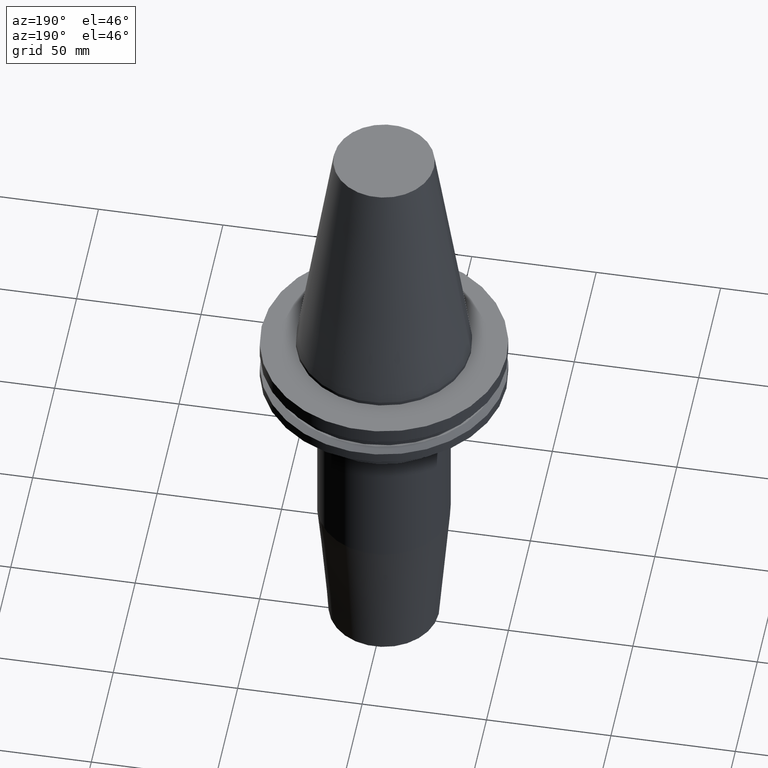
[diagram: clean part render]
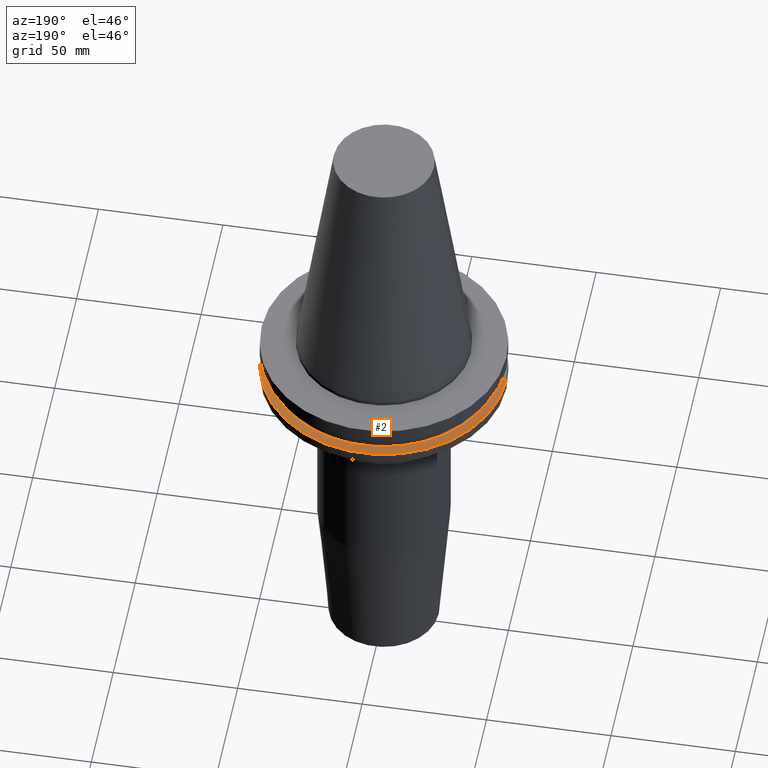
[diagram: same view with one face highlighted and labeled with its STEP entity id]
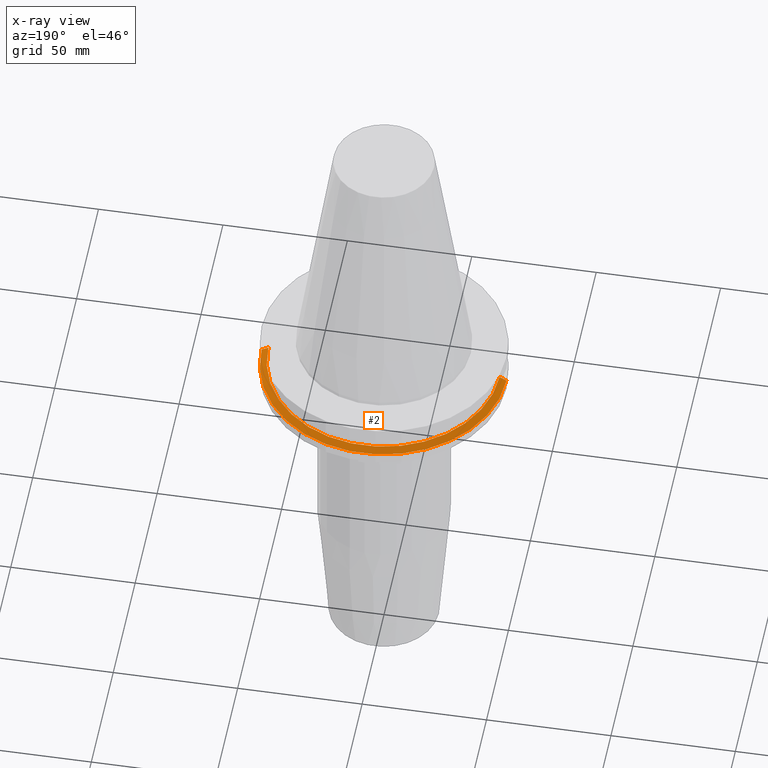
[diagram: x-ray of the same camera — body ghosted, the highlighted face saturated]
A machine part, auxiliary view. The second image highlights one B-rep face of the part: STEP entity #2.
The next image is the same camera in x-ray: the body ghosted, the highlighted face saturated — about 0% of this face is hidden behind the body in this view.
In plain terms, the highlighted conical surface has half-angle 60 deg.
Its self-contained STEP definition (entity closure, byte-faithful):
#1 = CARTESIAN_POINT ( 'NONE',  ( 0.000000000000000000, 0.000000000000000000, -14.65761014474876944 ) ) ;
#2 = ADVANCED_FACE ( 'NONE', ( #357 ), #383, .T. ) ;
#58 = DIRECTION ( 'NONE',  ( 0.8660254037844169472, 1.060575238724880168E-16, -0.5000000000000375255 ) ) ;
#66 = CARTESIAN_POINT ( 'NONE',  ( -49.21499999999998920, 0.000000000000000000, -14.65761014474876944 ) ) ;
#130 = ORIENTED_EDGE ( 'NONE', *, *, #622, .T. ) ;
#147 = ORIENTED_EDGE ( 'NONE', *, *, #510, .T. ) ;
#155 = LINE ( 'NONE', #66, #541 ) ;
#162 = AXIS2_PLACEMENT_3D ( 'NONE', #1, #466, #349 ) ;
#170 = DIRECTION ( 'NONE',  ( -0.000000000000000000, -0.000000000000000000, 1.000000000000000000 ) ) ;
#187 = CARTESIAN_POINT ( 'NONE',  ( 46.43919780457007818, 5.857130358318725715E-15, -13.05499999999999794 ) ) ;
#238 = DIRECTION ( 'NONE',  ( 1.000000000000000000, 0.000000000000000000, 0.000000000000000000 ) ) ;
#241 = EDGE_CURVE ( 'NONE', #728, #271, #435, .T. ) ;
#271 = VERTEX_POINT ( 'NONE', #577 ) ;
#303 = CARTESIAN_POINT ( 'NONE',  ( 0.000000000000000000, 0.000000000000000000, -13.05499999999999794 ) ) ;
#323 = AXIS2_PLACEMENT_3D ( 'NONE', #768, #438, #238 ) ;
#329 = CARTESIAN_POINT ( 'NONE',  ( 49.21499999999998920, 6.027099222003697037E-15, -14.65761014474876944 ) ) ;
#334 = DIRECTION ( 'NONE',  ( 1.000000000000000000, 0.000000000000000000, 0.000000000000000000 ) ) ;
#349 = DIRECTION ( 'NONE',  ( -1.000000000000000000, 0.000000000000000000, 0.000000000000000000 ) ) ;
#357 = FACE_OUTER_BOUND ( 'NONE', #587, .T. ) ;
#373 = CARTESIAN_POINT ( 'NONE',  ( -49.21499999999998920, 6.027099222003697037E-15, -14.65761014474876944 ) ) ;
#383 = CONICAL_SURFACE ( 'NONE', #162, 49.21499999999998920, 1.047197551196554333 ) ;
#387 = LINE ( 'NONE', #329, #763 ) ;
#395 = EDGE_CURVE ( 'NONE', #271, #456, #155, .T. ) ;
#413 = DIRECTION ( 'NONE',  ( -0.8660254037844169472, 0.000000000000000000, -0.5000000000000375255 ) ) ;
#435 = CIRCLE ( 'NONE', #473, 46.43919780457007818 ) ;
#438 = DIRECTION ( 'NONE',  ( -0.000000000000000000, -0.000000000000000000, 1.000000000000000000 ) ) ;
#456 = VERTEX_POINT ( 'NONE', #373 ) ;
#466 = DIRECTION ( 'NONE',  ( 0.000000000000000000, 0.000000000000000000, -1.000000000000000000 ) ) ;
#473 = AXIS2_PLACEMENT_3D ( 'NONE', #303, #170, #334 ) ;
#507 = VERTEX_POINT ( 'NONE', #820 ) ;
#510 = EDGE_CURVE ( 'NONE', #507, #456, #568, .T. ) ;
#541 = VECTOR ( 'NONE', #413, 1000.000000000000114 ) ;
#568 = CIRCLE ( 'NONE', #323, 49.21499999999998920 ) ;
#577 = CARTESIAN_POINT ( 'NONE',  ( -46.43919780457007818, 0.000000000000000000, -13.05499999999999794 ) ) ;
#587 = EDGE_LOOP ( 'NONE', ( #659, #130, #147, #596 ) ) ;
#596 = ORIENTED_EDGE ( 'NONE', *, *, #395, .F. ) ;
#622 = EDGE_CURVE ( 'NONE', #728, #507, #387, .T. ) ;
#659 = ORIENTED_EDGE ( 'NONE', *, *, #241, .F. ) ;
#728 = VERTEX_POINT ( 'NONE', #187 ) ;
#763 = VECTOR ( 'NONE', #58, 1000.000000000000114 ) ;
#768 = CARTESIAN_POINT ( 'NONE',  ( 0.000000000000000000, 0.000000000000000000, -14.65761014474876944 ) ) ;
#820 = CARTESIAN_POINT ( 'NONE',  ( 49.21499999999998920, 0.000000000000000000, -14.65761014474876944 ) ) ;